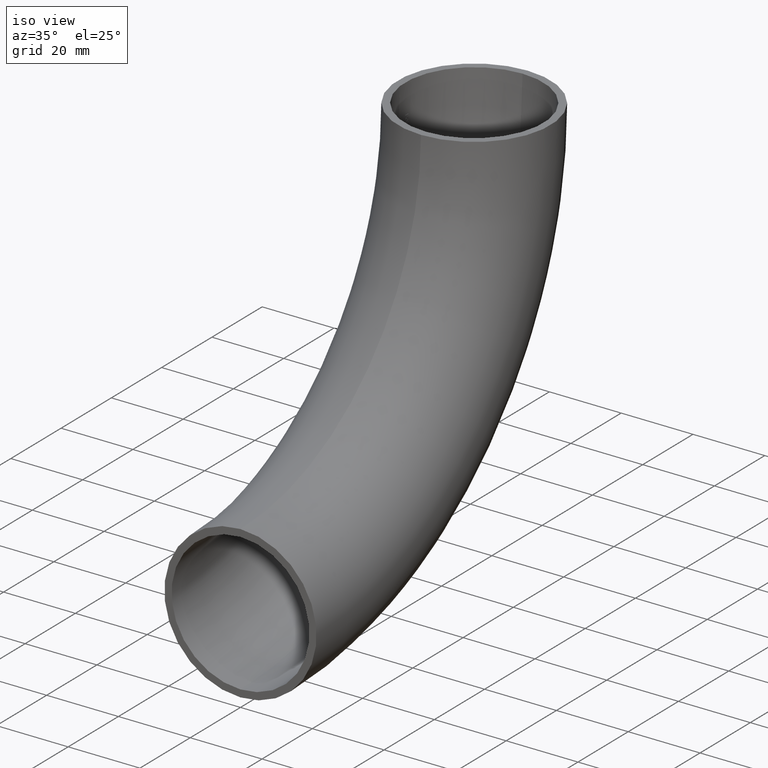
[diagram: clean part render]
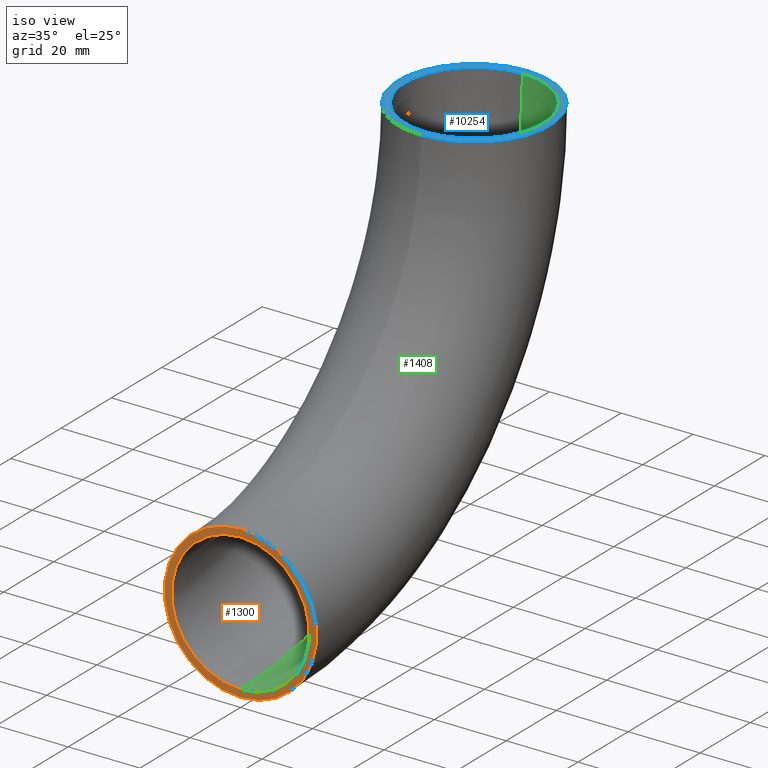
[diagram: same view with three faces highlighted in distinct colors, each labeled with its STEP entity id]
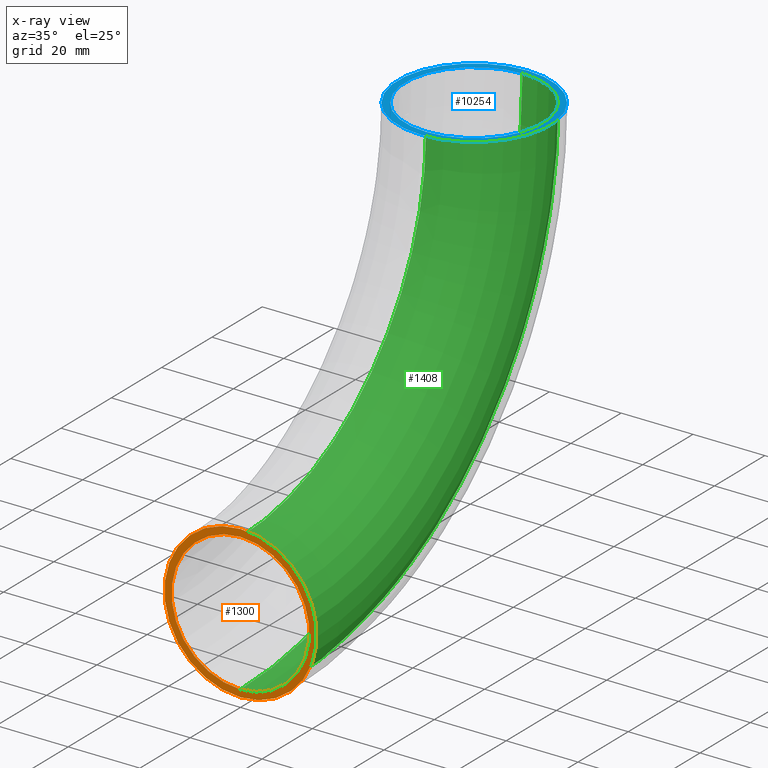
[diagram: x-ray of the same camera — body ghosted, the three highlighted faces saturated]
A machine part, iso view with three faces highlighted in distinct colors.
The next image is the same camera in x-ray (body ghosted, the three faces saturated) — at least one of them is partly hidden behind the body in this view.
Their STEP definitions:

[orange] entity #1300 — the highlighted planar face has unit normal (0, 1, 0).
#72 = CARTESIAN_POINT ( 'NONE',  ( 0.0000000000000000000, 0.0000000000000000000, -73.79999999999999700 ) ) ;
#102 = CARTESIAN_POINT ( 'NONE',  ( 0.0000000000000000000, 0.0000000000000000000, -71.79999999999999700 ) ) ;
#300 = DIRECTION ( 'NONE',  ( 0.0000000000000000000, 0.0000000000000000000, 1.000000000000000000 ) ) ;
#818 = VERTEX_POINT ( 'NONE', #72 ) ;
#949 = EDGE_CURVE ( 'NONE', #10106, #4032, #7686, .T. ) ;
#1300 = ADVANCED_FACE ( 'NONE', ( #3245, #6966 ), #5042, .F. ) ;
#1370 = ORIENTED_EDGE ( 'NONE', *, *, #3545, .F. ) ;
#1438 = CARTESIAN_POINT ( 'NONE',  ( 0.0000000000000000000, 0.0000000000000000000, -93.00000000000000000 ) ) ;
#1511 = DIRECTION ( 'NONE',  ( 0.0000000000000000000, 0.0000000000000000000, 1.000000000000000000 ) ) ;
#2165 = CARTESIAN_POINT ( 'NONE',  ( 0.0000000000000000000, 0.0000000000000000000, -112.2000000000000000 ) ) ;
#2205 = CARTESIAN_POINT ( 'NONE',  ( 0.0000000000000000000, 0.0000000000000000000, -114.2000000000000000 ) ) ;
#2418 = CARTESIAN_POINT ( 'NONE',  ( 0.0000000000000000000, 0.0000000000000000000, -93.00000000000000000 ) ) ;
#2457 = ORIENTED_EDGE ( 'NONE', *, *, #11436, .T. ) ;
#2569 = AXIS2_PLACEMENT_3D ( 'NONE', #2418, #10028, #1511 ) ;
#2868 = AXIS2_PLACEMENT_3D ( 'NONE', #8045, #6206, #7924 ) ;
#3245 = FACE_BOUND ( 'NONE', #7734, .T. ) ;
#3418 = CARTESIAN_POINT ( 'NONE',  ( 0.0000000000000000000, 0.0000000000000000000, -93.00000000000000000 ) ) ;
#3545 = EDGE_CURVE ( 'NONE', #4032, #10106, #7526, .T. ) ;
#3853 = VERTEX_POINT ( 'NONE', #2165 ) ;
#4032 = VERTEX_POINT ( 'NONE', #2205 ) ;
#4154 = AXIS2_PLACEMENT_3D ( 'NONE', #3418, #8992, #6179 ) ;
#4853 = ORIENTED_EDGE ( 'NONE', *, *, #949, .F. ) ;
#5042 = PLANE ( 'NONE',  #4154 ) ;
#5098 = CIRCLE ( 'NONE', #8811, 19.20000000000001000 ) ;
#5178 = DIRECTION ( 'NONE',  ( 0.0000000000000000000, 1.000000000000000000, 0.0000000000000000000 ) ) ;
#6179 = DIRECTION ( 'NONE',  ( 0.0000000000000000000, -0.0000000000000000000, 1.000000000000000000 ) ) ;
#6206 = DIRECTION ( 'NONE',  ( 0.0000000000000000000, 1.000000000000000000, 0.0000000000000000000 ) ) ;
#6952 = EDGE_CURVE ( 'NONE', #818, #3853, #7067, .T. ) ;
#6966 = FACE_OUTER_BOUND ( 'NONE', #10539, .T. ) ;
#7067 = CIRCLE ( 'NONE', #9669, 19.20000000000001000 ) ;
#7080 = DIRECTION ( 'NONE',  ( 0.0000000000000000000, 1.000000000000000000, 0.0000000000000000000 ) ) ;
#7526 = CIRCLE ( 'NONE', #2569, 21.19999999999999600 ) ;
#7686 = CIRCLE ( 'NONE', #2868, 21.19999999999999600 ) ;
#7734 = EDGE_LOOP ( 'NONE', ( #11928, #2457 ) ) ;
#7924 = DIRECTION ( 'NONE',  ( 0.0000000000000000000, 0.0000000000000000000, 1.000000000000000000 ) ) ;
#8045 = CARTESIAN_POINT ( 'NONE',  ( 0.0000000000000000000, 0.0000000000000000000, -93.00000000000000000 ) ) ;
#8811 = AXIS2_PLACEMENT_3D ( 'NONE', #1438, #5178, #9048 ) ;
#8992 = DIRECTION ( 'NONE',  ( 0.0000000000000000000, 1.000000000000000000, 0.0000000000000000000 ) ) ;
#9048 = DIRECTION ( 'NONE',  ( 0.0000000000000000000, 0.0000000000000000000, 1.000000000000000000 ) ) ;
#9669 = AXIS2_PLACEMENT_3D ( 'NONE', #11791, #7080, #300 ) ;
#10028 = DIRECTION ( 'NONE',  ( 0.0000000000000000000, 1.000000000000000000, 0.0000000000000000000 ) ) ;
#10106 = VERTEX_POINT ( 'NONE', #102 ) ;
#10539 = EDGE_LOOP ( 'NONE', ( #4853, #1370 ) ) ;
#11436 = EDGE_CURVE ( 'NONE', #3853, #818, #5098, .T. ) ;
#11791 = CARTESIAN_POINT ( 'NONE',  ( 0.0000000000000000000, 0.0000000000000000000, -93.00000000000000000 ) ) ;
#11928 = ORIENTED_EDGE ( 'NONE', *, *, #6952, .T. ) ;

[blue] entity #10254 — the highlighted planar face has unit normal (0, 0, 1).
#2 = ORIENTED_EDGE ( 'NONE', *, *, #4470, .F. ) ;
#55 = DIRECTION ( 'NONE',  ( 0.0000000000000000000, -1.000000000000000000, 6.123233995736766000E-017 ) ) ;
#192 = AXIS2_PLACEMENT_3D ( 'NONE', #5720, #7656, #55 ) ;
#282 = DIRECTION ( 'NONE',  ( 0.0000000000000000000, 6.123233995736766000E-017, 1.000000000000000000 ) ) ;
#664 = VERTEX_POINT ( 'NONE', #2544 ) ;
#804 = DIRECTION ( 'NONE',  ( 0.0000000000000000000, -1.000000000000000000, 6.123233995736761100E-017 ) ) ;
#1019 = ORIENTED_EDGE ( 'NONE', *, *, #8223, .T. ) ;
#1178 = DIRECTION ( 'NONE',  ( 0.0000000000000000000, 6.123233995736766000E-017, 1.000000000000000000 ) ) ;
#1587 = CARTESIAN_POINT ( 'NONE',  ( 0.0000000000000000000, 114.2000000000000000, -6.992733223131386300E-015 ) ) ;
#1920 = VERTEX_POINT ( 'NONE', #5893 ) ;
#2003 = ORIENTED_EDGE ( 'NONE', *, *, #7317, .T. ) ;
#2490 = AXIS2_PLACEMENT_3D ( 'NONE', #11532, #1178, #6827 ) ;
#2544 = CARTESIAN_POINT ( 'NONE',  ( 0.0000000000000000000, 73.79999999999999700, -4.518946688853733400E-015 ) ) ;
#2626 = DIRECTION ( 'NONE',  ( 0.0000000000000000000, 6.123233995736766000E-017, 1.000000000000000000 ) ) ;
#3952 = DIRECTION ( 'NONE',  ( 0.0000000000000000000, -1.000000000000000000, 6.123233995736764800E-017 ) ) ;
#4470 = EDGE_CURVE ( 'NONE', #9103, #664, #8404, .T. ) ;
#4575 = AXIS2_PLACEMENT_3D ( 'NONE', #11570, #4992, #3952 ) ;
#4943 = FACE_OUTER_BOUND ( 'NONE', #5905, .T. ) ;
#4992 = DIRECTION ( 'NONE',  ( 0.0000000000000000000, 6.123233995736766000E-017, 1.000000000000000000 ) ) ;
#5245 = EDGE_LOOP ( 'NONE', ( #9062, #2 ) ) ;
#5248 = FACE_BOUND ( 'NONE', #5245, .T. ) ;
#5720 = CARTESIAN_POINT ( 'NONE',  ( 0.0000000000000000000, 93.00000000000000000, -5.694607616035192300E-015 ) ) ;
#5893 = CARTESIAN_POINT ( 'NONE',  ( 0.0000000000000000000, 71.79999999999999700, -4.396482008938998300E-015 ) ) ;
#5905 = EDGE_LOOP ( 'NONE', ( #1019, #2003 ) ) ;
#5906 = CARTESIAN_POINT ( 'NONE',  ( 0.0000000000000000000, 93.00000000000000000, -5.694607616035192300E-015 ) ) ;
#6007 = CIRCLE ( 'NONE', #8307, 19.20000000000001000 ) ;
#6394 = VERTEX_POINT ( 'NONE', #1587 ) ;
#6827 = DIRECTION ( 'NONE',  ( 0.0000000000000000000, -1.000000000000000000, 6.123233995736761100E-017 ) ) ;
#7317 = EDGE_CURVE ( 'NONE', #6394, #1920, #9892, .T. ) ;
#7656 = DIRECTION ( 'NONE',  ( 0.0000000000000000000, 6.123233995736766000E-017, 1.000000000000000000 ) ) ;
#7724 = CARTESIAN_POINT ( 'NONE',  ( 0.0000000000000000000, 112.2000000000000000, -6.870268543216651100E-015 ) ) ;
#8223 = EDGE_CURVE ( 'NONE', #1920, #6394, #11045, .T. ) ;
#8307 = AXIS2_PLACEMENT_3D ( 'NONE', #11128, #2626, #804 ) ;
#8404 = CIRCLE ( 'NONE', #2490, 19.20000000000001000 ) ;
#8928 = EDGE_CURVE ( 'NONE', #664, #9103, #6007, .T. ) ;
#9062 = ORIENTED_EDGE ( 'NONE', *, *, #8928, .F. ) ;
#9103 = VERTEX_POINT ( 'NONE', #7724 ) ;
#9892 = CIRCLE ( 'NONE', #10059, 21.19999999999999600 ) ;
#10059 = AXIS2_PLACEMENT_3D ( 'NONE', #5906, #282, #10644 ) ;
#10254 = ADVANCED_FACE ( 'NONE', ( #5248, #4943 ), #10426, .T. ) ;
#10426 = PLANE ( 'NONE',  #192 ) ;
#10644 = DIRECTION ( 'NONE',  ( 0.0000000000000000000, -1.000000000000000000, 6.123233995736764800E-017 ) ) ;
#11045 = CIRCLE ( 'NONE', #4575, 21.19999999999999600 ) ;
#11128 = CARTESIAN_POINT ( 'NONE',  ( 0.0000000000000000000, 93.00000000000000000, -5.694607616035192300E-015 ) ) ;
#11532 = CARTESIAN_POINT ( 'NONE',  ( 0.0000000000000000000, 93.00000000000000000, -5.694607616035192300E-015 ) ) ;
#11570 = CARTESIAN_POINT ( 'NONE',  ( 0.0000000000000000000, 93.00000000000000000, -5.694607616035192300E-015 ) ) ;

[green] entity #1408 — the highlighted toroidal blend (fillet) surface has major radius 93 mm and minor (blend) radius 19.2 mm.
#72 = CARTESIAN_POINT ( 'NONE',  ( 0.0000000000000000000, 0.0000000000000000000, -73.79999999999999700 ) ) ;
#210 = DIRECTION ( 'NONE',  ( -1.000000000000000000, -0.0000000000000000000, -0.0000000000000000000 ) ) ;
#300 = DIRECTION ( 'NONE',  ( 0.0000000000000000000, 0.0000000000000000000, 1.000000000000000000 ) ) ;
#319 = ORIENTED_EDGE ( 'NONE', *, *, #6952, .F. ) ;
#664 = VERTEX_POINT ( 'NONE', #2544 ) ;
#804 = DIRECTION ( 'NONE',  ( 0.0000000000000000000, -1.000000000000000000, 6.123233995736761100E-017 ) ) ;
#818 = VERTEX_POINT ( 'NONE', #72 ) ;
#1239 = AXIS2_PLACEMENT_3D ( 'NONE', #10932, #4226, #10850 ) ;
#1408 = ADVANCED_FACE ( 'NONE', ( #9936 ), #7403, .F. ) ;
#2165 = CARTESIAN_POINT ( 'NONE',  ( 0.0000000000000000000, 0.0000000000000000000, -112.2000000000000000 ) ) ;
#2528 = ORIENTED_EDGE ( 'NONE', *, *, #2741, .T. ) ;
#2544 = CARTESIAN_POINT ( 'NONE',  ( 0.0000000000000000000, 73.79999999999999700, -4.518946688853733400E-015 ) ) ;
#2626 = DIRECTION ( 'NONE',  ( 0.0000000000000000000, 6.123233995736766000E-017, 1.000000000000000000 ) ) ;
#2741 = EDGE_CURVE ( 'NONE', #9103, #3853, #12277, .T. ) ;
#2776 = DIRECTION ( 'NONE',  ( -1.000000000000000000, -0.0000000000000000000, -0.0000000000000000000 ) ) ;
#3306 = CIRCLE ( 'NONE', #1239, 73.79999999999999700 ) ;
#3853 = VERTEX_POINT ( 'NONE', #2165 ) ;
#4226 = DIRECTION ( 'NONE',  ( -1.000000000000000000, -0.0000000000000000000, -0.0000000000000000000 ) ) ;
#4554 = AXIS2_PLACEMENT_3D ( 'NONE', #10493, #210, #9615 ) ;
#5970 = ORIENTED_EDGE ( 'NONE', *, *, #8928, .T. ) ;
#6007 = CIRCLE ( 'NONE', #8307, 19.20000000000001000 ) ;
#6857 = ORIENTED_EDGE ( 'NONE', *, *, #11491, .F. ) ;
#6952 = EDGE_CURVE ( 'NONE', #818, #3853, #7067, .T. ) ;
#7067 = CIRCLE ( 'NONE', #9669, 19.20000000000001000 ) ;
#7080 = DIRECTION ( 'NONE',  ( 0.0000000000000000000, 1.000000000000000000, 0.0000000000000000000 ) ) ;
#7403 = TOROIDAL_SURFACE ( 'NONE', #10490, 93.00000000000000000, 19.20000000000000600 ) ;
#7724 = CARTESIAN_POINT ( 'NONE',  ( 0.0000000000000000000, 112.2000000000000000, -6.870268543216651100E-015 ) ) ;
#8307 = AXIS2_PLACEMENT_3D ( 'NONE', #11128, #2626, #804 ) ;
#8474 = CARTESIAN_POINT ( 'NONE',  ( 0.0000000000000000000, 0.0000000000000000000, 0.0000000000000000000 ) ) ;
#8928 = EDGE_CURVE ( 'NONE', #664, #9103, #6007, .T. ) ;
#9103 = VERTEX_POINT ( 'NONE', #7724 ) ;
#9441 = DIRECTION ( 'NONE',  ( 0.0000000000000000000, 0.0000000000000000000, 1.000000000000000000 ) ) ;
#9615 = DIRECTION ( 'NONE',  ( 0.0000000000000000000, 0.0000000000000000000, 1.000000000000000000 ) ) ;
#9669 = AXIS2_PLACEMENT_3D ( 'NONE', #11791, #7080, #300 ) ;
#9936 = FACE_OUTER_BOUND ( 'NONE', #10397, .T. ) ;
#10397 = EDGE_LOOP ( 'NONE', ( #5970, #2528, #319, #6857 ) ) ;
#10490 = AXIS2_PLACEMENT_3D ( 'NONE', #8474, #2776, #9441 ) ;
#10493 = CARTESIAN_POINT ( 'NONE',  ( 0.0000000000000000000, 0.0000000000000000000, 0.0000000000000000000 ) ) ;
#10850 = DIRECTION ( 'NONE',  ( 0.0000000000000000000, 0.0000000000000000000, 1.000000000000000000 ) ) ;
#10932 = CARTESIAN_POINT ( 'NONE',  ( 2.351321854362918500E-015, 0.0000000000000000000, 0.0000000000000000000 ) ) ;
#11128 = CARTESIAN_POINT ( 'NONE',  ( 0.0000000000000000000, 93.00000000000000000, -5.694607616035192300E-015 ) ) ;
#11491 = EDGE_CURVE ( 'NONE', #664, #818, #3306, .T. ) ;
#11791 = CARTESIAN_POINT ( 'NONE',  ( 0.0000000000000000000, 0.0000000000000000000, -93.00000000000000000 ) ) ;
#12277 = CIRCLE ( 'NONE', #4554, 112.2000000000000000 ) ;